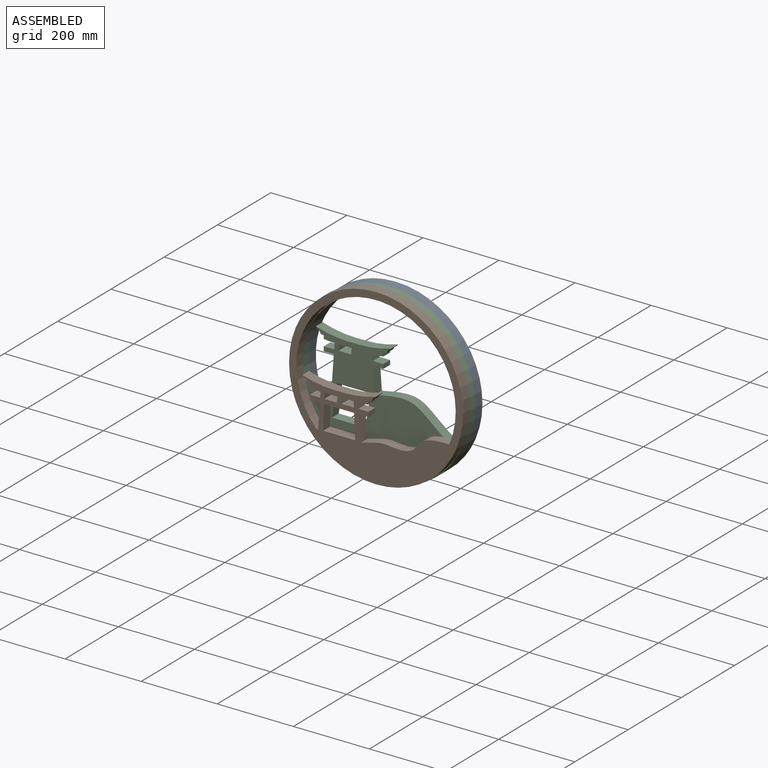
[diagram: assembled view]
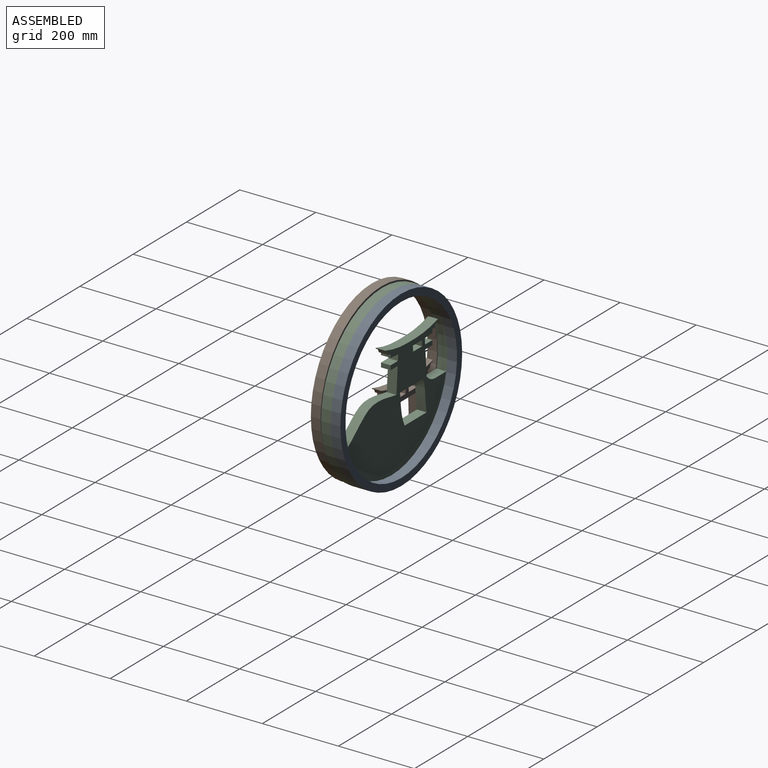
[diagram: assembled view, second angle]
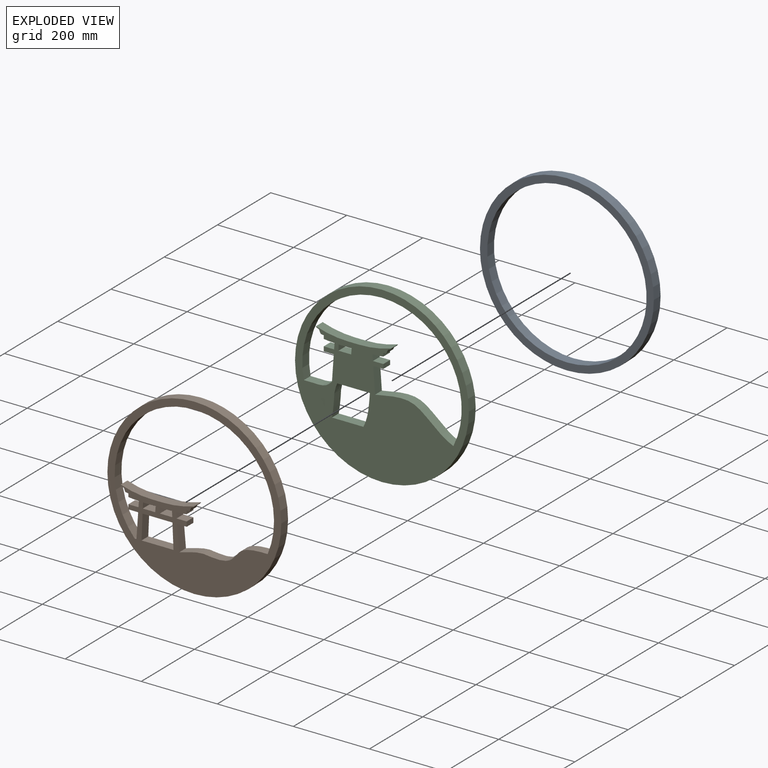
[diagram: exploded view]
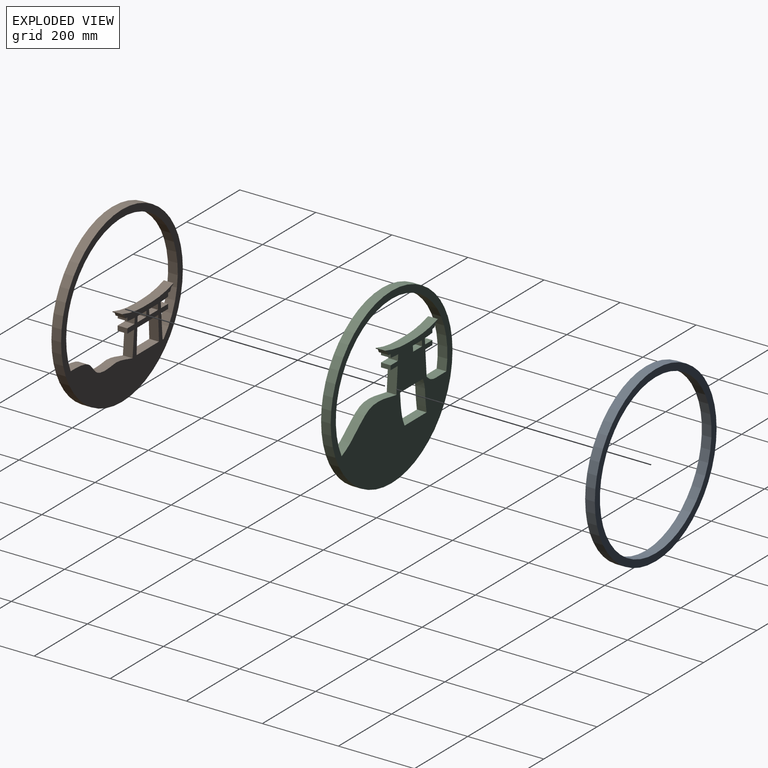
[diagram: exploded view, second angle]
ASSEMBLY  parts=3 mates=2
PART A: 4 faces, bbox 457.2x25.4x457.2 mm
  f0: cylinder r=209.55mm len=419.1mm, axis (0,1,0), area 33442.7mm2, adj f2,f3
  f1: cylinder r=228.6mm len=457.2mm, axis (0,1,0), area 36482.9mm2, adj f2,f3
  f2: plane 457.2x457.2mm, normal (0,-1,0), area 26222.1mm2, adj f0,f1
  f3: plane 457.2x457.2mm, normal (0,1,0), area 26222.1mm2, adj f0,f1
PART B: 44 faces, bbox 457.2x25.4x457.2 mm
  f0: plane 33.33x25.4mm, normal (0,0,-1), area 846.5mm2, adj f1,f41,f42,f43
  f1: plane 25.4x14.56mm, normal (-1,0,0.09), area 371.3mm2, adj f0,f2,f42,f43
  f2: plane 32.64x25.4mm, normal (0,0,1), area 829.1mm2, adj f1,f41,f42,f43
  f3: plane 64.58x25.4mm, normal (1,0,-0.04), area 1641.8mm2, adj f4,f37,f42,f43
  f4: plane 39.27x25.4mm, normal (0,0,-1), area 997.5mm2, adj f3,f5,f42,f43
  f5: plane 39.29x25.4mm, normal (0,0,-1), area 997.9mm2, adj f4,f6,f42,f43
  f6: plane 64.3x25.4mm, normal (-1,0,-0.04), area 1634.7mm2, adj f5,f37,f42,f43
  f7: cylinder r=620.84mm len=25.4mm, axis (0,1,0), area 204mm2, adj f8,f39,f42,f43
  f8: plane 25.4x9.25mm, normal (0.91,0,-0.42), area 259.3mm2, adj f7,f9,f42,f43
  f9: plane 25.4x6.9mm, normal (0.41,0,-0.91), area 192mm2, adj f8,f10,f42,f43
  f10: plane 25.4x2.27mm, normal (0.91,0,-0.42), area 63.5mm2, adj f9,f11,f42,f43
  f11: cylinder r=263.08mm len=82.63mm, axis (0,1,0), area 2135mm2, adj f10,f12,f42,f43
  f12: plane 28.2x25.4mm, normal (0,0,1), area 716.3mm2, adj f11,f13,f42,f43
  f13: cylinder r=263.08mm len=82.63mm, axis (0,1,0), area 2135mm2, adj f12,f14,f42,f43
  f14: plane 25.4x2.27mm, normal (-0.91,0,-0.42), area 63.5mm2, adj f13,f15,f42,f43
  f15: plane 25.4x6.9mm, normal (-0.41,0,-0.91), area 192mm2, adj f14,f16,f42,f43
  f16: plane 25.4x9.25mm, normal (-0.91,0,-0.42), area 259.3mm2, adj f15,f17,f42,f43
  f17: cylinder r=620.84mm len=25.4mm, axis (0,1,0), area 202mm2, adj f16,f18,f42,f43
  f18: plane 25.4x8.62mm, normal (-1,0,0), area 218.9mm2, adj f17,f19,f42,f43
  f19: cylinder r=264.61mm len=27.67mm, axis (0,1,0), area 705.3mm2, adj f18,f20,f42,f43
  f20: plane 25.4x15.13mm, normal (-1,0,0.07), area 385.3mm2, adj f19,f21,f42,f43
  f21: plane 26.71x25.4mm, normal (0,0,1), area 678.4mm2, adj f20,f22,f42,f43
  f22: plane 25.4x12.05mm, normal (-1,0,0), area 306mm2, adj f21,f23,f42,f43
  f23: plane 25.85x25.4mm, normal (0,0,-1), area 656.5mm2, adj f22,f24,f42,f43
  f24: plane 64.62x25.4mm, normal (-1,0,0.07), area 1645.5mm2, adj f23,f25,f42,f43
  f25: extruded ~25.4x4.75mm, area 120.9mm2, adj f24,f26,f42,f43
  f26: cylinder r=209.55mm len=419.1mm, axis (0,1,0), area 22719.4mm2, adj f25,f27,f42,f43
  f27: extruded ~232.59x57.94mm, area 6346.4mm2, adj f26,f28,f42,f43
  f28: plane 65.86x25.4mm, normal (1,0,0.09), area 1679.7mm2, adj f27,f29,f42,f43
  f29: plane 25.57x25.4mm, normal (0,0,-1), area 649.6mm2, adj f28,f30,f42,f43
  f30: plane 25.4x12.7mm, normal (1,0,0), area 322.6mm2, adj f29,f31,f42,f43
  f31: plane 26.71x25.4mm, normal (0,0,1), area 678.4mm2, adj f30,f32,f42,f43
  f32: plane 25.4x14.88mm, normal (1,0,0.09), area 379.4mm2, adj f31,f33,f42,f43
  f33: cylinder r=263.02mm len=27.81mm, axis (0,1,0), area 708.9mm2, adj f32,f39,f42,f43
  f34: plane 32.64x25.4mm, normal (0,0,1), area 829.1mm2, adj f35,f40,f42,f43
  f35: plane 25.4x14.35mm, normal (1,0,0.09), area 365.9mm2, adj f34,f36,f42,f43
  f36: plane 33.31x25.4mm, normal (0.01,0,-1), area 846mm2, adj f35,f40,f42,f43
  f37: plane 84.01x25.4mm, normal (0,0,1), area 2133.9mm2, adj f3,f6,f42,f43
  f38: cylinder r=228.6mm len=457.2mm, axis (0,1,0), area 36482.9mm2, adj f42,f43
  f39: plane 25.4x8.75mm, normal (1,0,0), area 222.1mm2, adj f7,f33,f42,f43
  f40: plane 25.4x14.56mm, normal (-1,0,-0.04), area 370.2mm2, adj f34,f36,f42,f43
  f41: plane 25.4x14.56mm, normal (1,0,-0.04), area 370.2mm2, adj f0,f2,f42,f43
  f42: plane 457.2x457.2mm, normal (0,-1,0), area 53186.9mm2, adj f0,f1,f2,f3,f4,f5,f6,f7
  f43: plane 457.2x457.2mm, normal (0,1,0), area 53186.9mm2, adj f0,f1,f2,f3,f4,f5,f6,f7
PART C: 52 faces, bbox 457.2x25.4x457.2 mm
  f0: plane 25.4x0mm, normal (0,0,-1), area 0.1mm2, adj f1
  f1: plane 25.4x0mm, normal (0,0,1), area 0.1mm2, adj f0,f2,f3
  f2: plane 457.2x457.2mm, normal (0,1,0), area 85236.3mm2, adj f1,f4,f5,f6,f7,f8,f9,f10
  f3: plane 457.2x457.2mm, normal (0,-1,0), area 85236.3mm2, adj f1,f4,f5,f6,f7,f8,f9,f10
  f4: cylinder r=209.55mm len=419.1mm, axis (0,1,0), area 20220mm2, adj f2,f3,f5,f31
  f5: extruded ~74.02x25.4mm, area 2002.9mm2, adj f2,f3,f4,f6
  f6: plane 66.59x25.4mm, normal (-1,0,0.07), area 1695.7mm2, adj f2,f3,f5,f7
  f7: plane 26.46x25.4mm, normal (0,0,-1), area 672.2mm2, adj f2,f3,f6,f8
  f8: plane 25.4x11.8mm, normal (-1,0,0), area 299.8mm2, adj f2,f3,f7,f9
  f9: plane 27.31x25.4mm, normal (0,0,1), area 693.6mm2, adj f2,f3,f8,f10
  f10: plane 25.4x15.47mm, normal (-1,0,0.07), area 394mm2, adj f2,f3,f9,f11
  f11: cylinder r=270.56mm len=28.29mm, axis (0,1,0), area 721.1mm2, adj f2,f3,f10,f12
  f12: plane 25.4x8.81mm, normal (-1,0,0), area 223.9mm2, adj f2,f3,f11,f13
  f13: cylinder r=634.79mm len=25.4mm, axis (0,1,0), area 206.5mm2, adj f2,f3,f12,f14
  f14: plane 25.4x9.46mm, normal (-0.91,0,-0.42), area 265.1mm2, adj f2,f3,f13,f15
  f15: plane 25.4x7.05mm, normal (-0.41,0,-0.91), area 196.3mm2, adj f2,f3,f14,f16
  f16: plane 25.4x2.32mm, normal (-0.91,0,-0.42), area 64.9mm2, adj f2,f3,f15,f17
  f17: cylinder r=268.99mm len=84.49mm, axis (0,1,0), area 2183mm2, adj f2,f3,f16,f18
  f18: plane 28.83x25.4mm, normal (0,0,1), area 732.4mm2, adj f2,f3,f17,f19
  f19: cylinder r=268.99mm len=84.49mm, axis (0,1,0), area 2183mm2, adj f2,f3,f18,f20
  f20: plane 25.4x2.32mm, normal (0.91,0,-0.42), area 64.9mm2, adj f2,f3,f19,f21
  f21: plane 25.4x7.05mm, normal (0.41,0,-0.91), area 196.3mm2, adj f2,f3,f20,f22
  f22: plane 25.4x9.46mm, normal (0.91,0,-0.42), area 265.1mm2, adj f2,f3,f21,f23
  f23: plane 25.4x8.14mm, normal (0.14,0,-0.99), area 208.7mm2, adj f2,f3,f22,f24
  f24: plane 25.4x8.81mm, normal (1,0,0), area 223.9mm2, adj f2,f3,f23,f25
  f25: cylinder r=270.56mm len=28.29mm, axis (0,1,0), area 721.1mm2, adj f2,f3,f24,f26
  f26: plane 25.4x15.47mm, normal (1,0,0.07), area 394mm2, adj f2,f3,f25,f27
  f27: plane 27.32x25.4mm, normal (0,0,1), area 693.9mm2, adj f2,f3,f26,f28
  f28: plane 25.4x11.6mm, normal (1,0,0), area 294.6mm2, adj f2,f3,f27,f29
  f29: plane 26.48x25.4mm, normal (0,0,-1), area 672.5mm2, adj f2,f3,f28,f30
  f30: plane 66.79x25.4mm, normal (1,0,0.07), area 1700.8mm2, adj f2,f3,f29,f31
  f31: extruded ~205.92x77.07mm, area 5849.8mm2, adj f2,f3,f4,f30
  f32: cylinder r=228.6mm len=457.2mm, axis (0,1,0), area 36482.9mm2, adj f2,f3
  f33: extruded ~25.4x13.73mm, area 378.2mm2, adj f2,f3,f34,f47
  f34: extruded ~25.4x14.06mm, area 372.6mm2, adj f2,f3,f33,f35
  f35: extruded ~25.4x13.93mm, area 360.3mm2, adj f2,f3,f34,f36
  f36: extruded ~25.4x17.12mm, area 438.1mm2, adj f2,f3,f35,f37
  f37: extruded ~25.4x14.13mm, area 360.2mm2, adj f2,f3,f36,f38
  f38: extruded ~25.4x11.78mm, area 300.1mm2, adj f2,f3,f37,f39
  f39: plane 25.4x0.2mm, normal (-1,0,-0.04), area 5mm2, adj f2,f3,f38,f40
  f40: plane 85.9x25.4mm, normal (0,0,-1), area 2181.9mm2, adj f2,f3,f39,f41
  f41: extruded ~25.4x11.98mm, area 323.8mm2, adj f2,f3,f40,f42
  f42: extruded ~25.4x14.13mm, area 368.4mm2, adj f2,f3,f41,f43
  f43: extruded ~25.4x17.12mm, area 435.7mm2, adj f2,f3,f42,f44
  f44: extruded ~25.4x13.93mm, area 355.2mm2, adj f2,f3,f43,f45
  f45: extruded ~25.4x14.06mm, area 359.7mm2, adj f2,f3,f44,f46
  f46: extruded ~25.4x13.73mm, area 353mm2, adj f2,f3,f45,f47
  f47: plane 82.79x25.4mm, normal (0,0,1), area 2102.8mm2, adj f2,f3,f33,f46
  f48: plane 34.07x25.4mm, normal (0,0,-1), area 865.5mm2, adj f2,f3,f49,f51
  f49: plane 25.4x14.89mm, normal (1,0,-0.04), area 378.5mm2, adj f2,f3,f48,f50
  f50: plane 33.38x25.4mm, normal (0,0,1), area 847.7mm2, adj f2,f3,f49,f51
  f51: plane 25.4x14.89mm, normal (-1,0,0.09), area 379.7mm2, adj f2,f3,f48,f50
PLACE A t=(-945.78,-236.98,-34.95)mm
PLACE B t=(-550.37,-287.78,-79.06)mm
PLACE C t=(-864.29,-262.38,-25.15)mm
MATE planar C.f3 <-> B.f43  axis (0,-1,0) through (-955.32,-287.78,-91.89)mm
MATE cylindrical A.f0 <-> C.f4  axis (0,1,0) through (-945.78,-249.68,-34.95)mm
